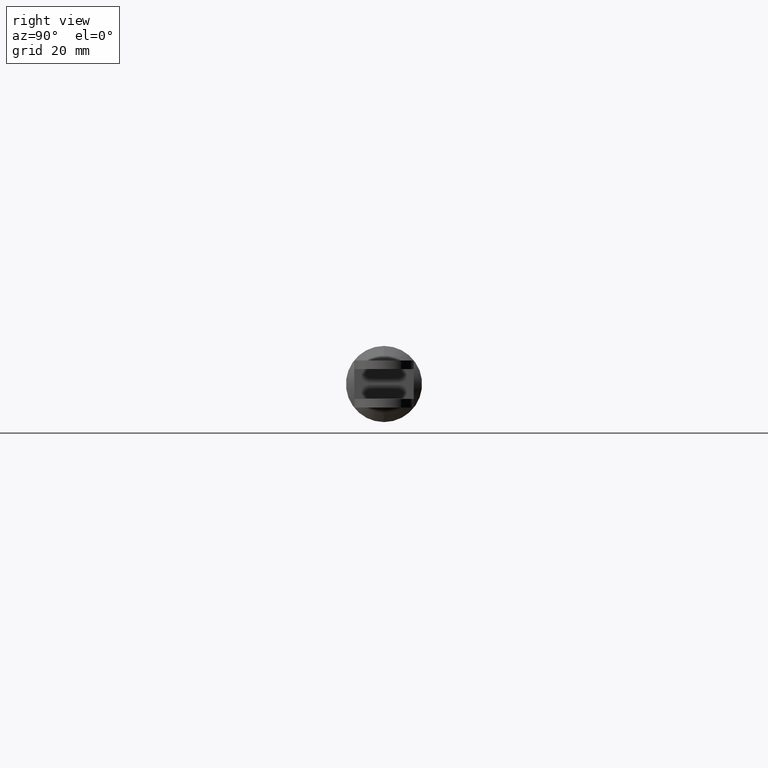
[diagram: clean part render]
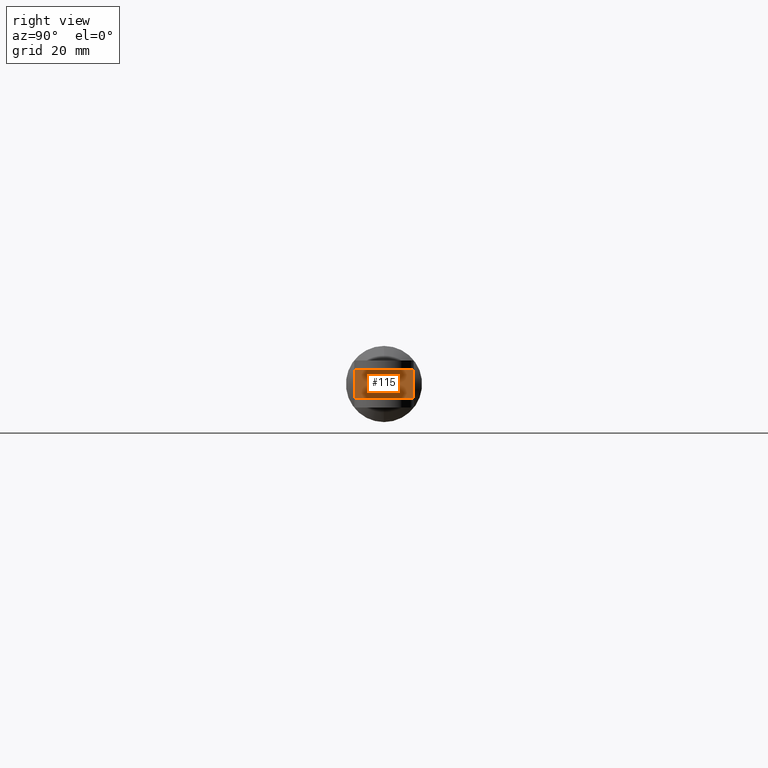
[diagram: same view with one face highlighted and labeled with its STEP entity id]
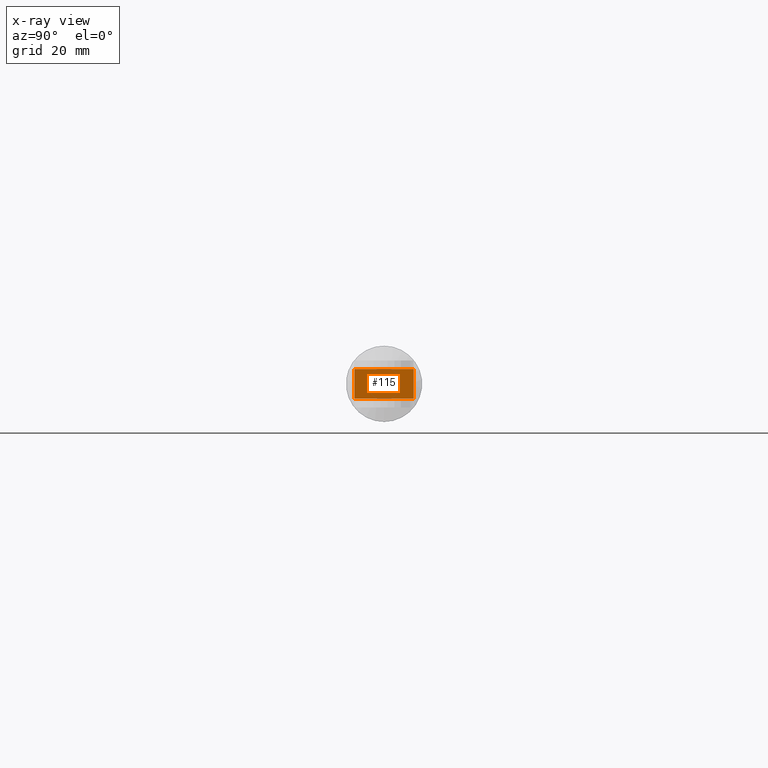
[diagram: x-ray of the same camera — body ghosted, the highlighted face saturated]
A machine part, right view. The second image highlights one B-rep face of the part: STEP entity #115.
The next image is the same camera in x-ray: the body ghosted, the highlighted face saturated — about 0% of this face is hidden behind the body in this view.
In plain terms, the highlighted planar face has unit normal (1, 0, 0).
Its self-contained STEP definition (entity closure, byte-faithful):
#115=ADVANCED_FACE('',(#208),#207,.T.);
#207=PLANE('',#1049);
#208=FACE_OUTER_BOUND('',#1050,.T.);
#1046=CARTESIAN_POINT('',(3.22531809029E+002,-1.32000000000E+001,1.13220542859E+002));
#1047=DIRECTION('',(1.00000000000E+000,0.00000000000E+000,0.00000000000E+000));
#1048=DIRECTION('',(0.00000000000E+000,1.00000000000E+000,0.00000000000E+000));
#1049=AXIS2_PLACEMENT_3D('',#1046,#1047,#1048);
#1050=EDGE_LOOP('',(#1984,#1985,#1986,#1987));
#1984=ORIENTED_EDGE('',*,*,#2295,.T.);
#1985=ORIENTED_EDGE('',*,*,#2296,.F.);
#1986=ORIENTED_EDGE('',*,*,#2297,.F.);
#1987=ORIENTED_EDGE('',*,*,#2291,.T.);
#2291=EDGE_CURVE('',#2507,#2500,#2508,.T.);
#2295=EDGE_CURVE('',#2500,#2534,#2535,.T.);
#2296=EDGE_CURVE('',#2541,#2534,#2542,.T.);
#2297=EDGE_CURVE('',#2507,#2541,#2548,.T.);
#2500=VERTEX_POINT('',#3520);
#2507=VERTEX_POINT('',#3524);
#2508=LINE('',#3525,#3526);
#2534=VERTEX_POINT('',#3541);
#2535=LINE('',#3542,#3543);
#2541=VERTEX_POINT('',#3545);
#2542=LINE('',#3546,#3547);
#2548=LINE('',#3549,#3550);
#3520=CARTESIAN_POINT('',(3.22531809029E+002,-1.10000000000E+001,1.25320542859E+002));
#3524=CARTESIAN_POINT('',(3.22531809029E+002,1.10000000000E+001,1.25320542859E+002));
#3525=CARTESIAN_POINT('',(3.22531809029E+002,1.10000000000E+001,1.25320542859E+002));
#3526=VECTOR('',#3527,2.20000000000E+001);
#3527=DIRECTION('',(0.00000000000E+000,-1.00000000000E+000,0.00000000000E+000));
#3541=CARTESIAN_POINT('',(3.22531809029E+002,-1.10000000000E+001,1.14320542859E+002));
#3542=CARTESIAN_POINT('',(3.22531809029E+002,-1.10000000000E+001,1.25320542859E+002));
#3543=VECTOR('',#3544,1.10000000000E+001);
#3544=DIRECTION('',(0.00000000000E+000,0.00000000000E+000,-1.00000000000E+000));
#3545=CARTESIAN_POINT('',(3.22531809029E+002,1.10000000000E+001,1.14320542859E+002));
#3546=CARTESIAN_POINT('',(3.22531809029E+002,1.10000000000E+001,1.14320542859E+002));
#3547=VECTOR('',#3548,2.20000000000E+001);
#3548=DIRECTION('',(0.00000000000E+000,-1.00000000000E+000,0.00000000000E+000));
#3549=CARTESIAN_POINT('',(3.22531809029E+002,1.10000000000E+001,1.25320542859E+002));
#3550=VECTOR('',#3551,1.10000000000E+001);
#3551=DIRECTION('',(0.00000000000E+000,0.00000000000E+000,-1.00000000000E+000));